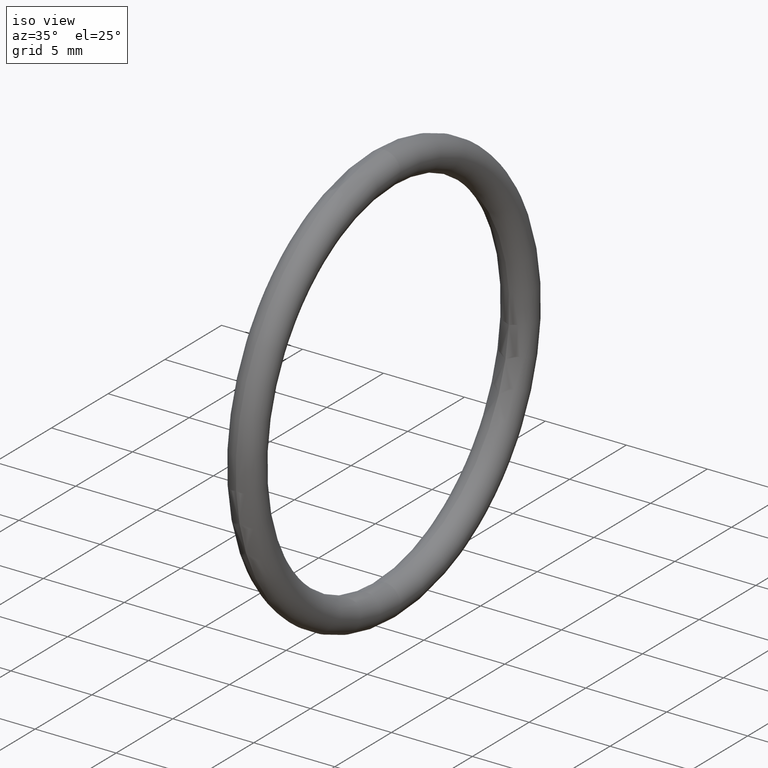
[diagram: clean part render]
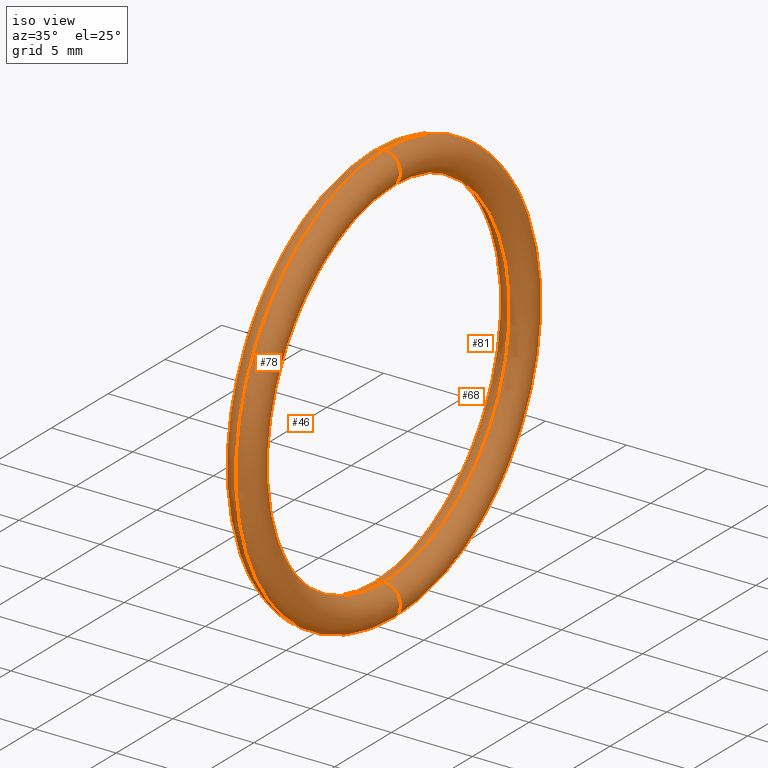
[diagram: same view with one multi-face feature highlighted, each face labeled with its STEP entity id]
A machine part, iso view. The highlighted faces form ONE feature: a constant-radius fillet chain: 4 tangent blend faces with common blend radius 1.016 mm. The faces share edges in the B-rep.
Their STEP definitions:
[1] entity #68 (Torus):
#1 = CIRCLE ( 'NONE', #9, 0.4350000000000000000 ) ;
#2 = CARTESIAN_POINT ( 'NONE',  ( 0.1000000000000000700, 0.0000000000000000000, 0.0000000000000000000 ) ) ;
#8 = CARTESIAN_POINT ( 'NONE',  ( 0.1000000000000000700, 0.0000000000000000000, 0.0000000000000000000 ) ) ;
#9 = AXIS2_PLACEMENT_3D ( 'NONE', #8, #15, #14 ) ;
#11 = TOROIDAL_SURFACE ( 'NONE', #40, 0.4749999999999999800, 0.04000000000000000100 ) ;
#12 = DIRECTION ( 'NONE',  ( 0.0000000000000000000, 0.0000000000000000000, 1.000000000000000000 ) ) ;
#13 = DIRECTION ( 'NONE',  ( -1.000000000000000000, 0.0000000000000000000, 0.0000000000000000000 ) ) ;
#14 = DIRECTION ( 'NONE',  ( 0.0000000000000000000, 0.0000000000000000000, 1.000000000000000000 ) ) ;
#15 = DIRECTION ( 'NONE',  ( -1.000000000000000000, 0.0000000000000000000, 0.0000000000000000000 ) ) ;
#29 = DIRECTION ( 'NONE',  ( -1.000000000000000000, 0.0000000000000000000, 0.0000000000000000000 ) ) ;
#40 = AXIS2_PLACEMENT_3D ( 'NONE', #2, #29, #41 ) ;
#41 = DIRECTION ( 'NONE',  ( 0.0000000000000000000, 0.0000000000000000000, 1.000000000000000000 ) ) ;
#42 = CARTESIAN_POINT ( 'NONE',  ( 0.1000000000000000700, 0.0000000000000000000, 0.0000000000000000000 ) ) ;
#43 = AXIS2_PLACEMENT_3D ( 'NONE', #42, #13, #12 ) ;
#44 = CIRCLE ( 'NONE', #43, 0.5150000000000000100 ) ;
#54 = CARTESIAN_POINT ( 'NONE',  ( 0.1000000000000000700, 5.817072295949927200E-017, -0.4749999999999999800 ) ) ;
#57 = EDGE_CURVE ( 'NONE', #58, #59, #112, .T. ) ;
#58 = VERTEX_POINT ( 'NONE', #108 ) ;
#59 = VERTEX_POINT ( 'NONE', #107 ) ;
#62 = VERTEX_POINT ( 'NONE', #101 ) ;
#63 = VERTEX_POINT ( 'NONE', #100 ) ;
#65 = EDGE_CURVE ( 'NONE', #62, #63, #99, .T. ) ;
#68 = ADVANCED_FACE ( 'NONE', ( #89 ), #11, .T. ) ;
#69 = EDGE_LOOP ( 'NONE', ( #70, #71, #73, #74 ) ) ;
#70 = ORIENTED_EDGE ( 'NONE', *, *, #65, .F. ) ;
#71 = ORIENTED_EDGE ( 'NONE', *, *, #72, .T. ) ;
#72 = EDGE_CURVE ( 'NONE', #62, #58, #44, .T. ) ;
#73 = ORIENTED_EDGE ( 'NONE', *, *, #57, .T. ) ;
#74 = ORIENTED_EDGE ( 'NONE', *, *, #75, .F. ) ;
#75 = EDGE_CURVE ( 'NONE', #63, #59, #1, .T. ) ;
#89 = FACE_OUTER_BOUND ( 'NONE', #69, .T. ) ;
#95 = DIRECTION ( 'NONE',  ( 0.0000000000000000000, 0.0000000000000000000, -1.000000000000000000 ) ) ;
#96 = DIRECTION ( 'NONE',  ( 0.0000000000000000000, -1.000000000000000000, 0.0000000000000000000 ) ) ;
#97 = CARTESIAN_POINT ( 'NONE',  ( 0.1000000000000000700, 0.0000000000000000000, 0.4749999999999999800 ) ) ;
#98 = AXIS2_PLACEMENT_3D ( 'NONE', #97, #96, #95 ) ;
#99 = CIRCLE ( 'NONE', #98, 0.03999999999999998000 ) ;
#100 = CARTESIAN_POINT ( 'NONE',  ( 0.1000000000000000700, 0.0000000000000000000, 0.4350000000000000000 ) ) ;
#101 = CARTESIAN_POINT ( 'NONE',  ( 0.1000000000000000700, 0.0000000000000000000, 0.5150000000000000100 ) ) ;
#107 = CARTESIAN_POINT ( 'NONE',  ( 0.1000000000000000700, 5.327213576290986400E-017, -0.4350000000000000000 ) ) ;
#108 = CARTESIAN_POINT ( 'NONE',  ( 0.1000000000000000700, 6.306931015608868600E-017, -0.5150000000000000100 ) ) ;
#109 = DIRECTION ( 'NONE',  ( 0.0000000000000000000, -1.224646799147353000E-016, 1.000000000000000000 ) ) ;
#110 = DIRECTION ( 'NONE',  ( 0.0000000000000000000, 1.000000000000000000, 1.224646799147353200E-016 ) ) ;
#111 = AXIS2_PLACEMENT_3D ( 'NONE', #54, #110, #109 ) ;
#112 = CIRCLE ( 'NONE', #111, 0.03999999999999998000 ) ;
[2] entity #81 (Torus):
#1 = CIRCLE ( 'NONE', #9, 0.4350000000000000000 ) ;
#3 = CARTESIAN_POINT ( 'NONE',  ( 0.1000000000000000700, 0.0000000000000000000, 0.0000000000000000000 ) ) ;
#4 = TOROIDAL_SURFACE ( 'NONE', #19, 0.4749999999999999800, 0.04000000000000000100 ) ;
#8 = CARTESIAN_POINT ( 'NONE',  ( 0.1000000000000000700, 0.0000000000000000000, 0.0000000000000000000 ) ) ;
#9 = AXIS2_PLACEMENT_3D ( 'NONE', #8, #15, #14 ) ;
#12 = DIRECTION ( 'NONE',  ( 0.0000000000000000000, 0.0000000000000000000, 1.000000000000000000 ) ) ;
#13 = DIRECTION ( 'NONE',  ( -1.000000000000000000, 0.0000000000000000000, 0.0000000000000000000 ) ) ;
#14 = DIRECTION ( 'NONE',  ( 0.0000000000000000000, 0.0000000000000000000, 1.000000000000000000 ) ) ;
#15 = DIRECTION ( 'NONE',  ( -1.000000000000000000, 0.0000000000000000000, 0.0000000000000000000 ) ) ;
#16 = CIRCLE ( 'NONE', #38, 0.03999999999999998000 ) ;
#17 = DIRECTION ( 'NONE',  ( 0.0000000000000000000, 0.0000000000000000000, 1.000000000000000000 ) ) ;
#18 = DIRECTION ( 'NONE',  ( -1.000000000000000000, 0.0000000000000000000, 0.0000000000000000000 ) ) ;
#19 = AXIS2_PLACEMENT_3D ( 'NONE', #3, #18, #17 ) ;
#21 = FACE_OUTER_BOUND ( 'NONE', #76, .T. ) ;
#31 = DIRECTION ( 'NONE',  ( 0.0000000000000000000, -1.224646799147353000E-016, 1.000000000000000000 ) ) ;
#32 = DIRECTION ( 'NONE',  ( 0.0000000000000000000, 1.000000000000000000, 1.224646799147353200E-016 ) ) ;
#33 = AXIS2_PLACEMENT_3D ( 'NONE', #39, #32, #31 ) ;
#34 = CIRCLE ( 'NONE', #33, 0.03999999999999998000 ) ;
#35 = DIRECTION ( 'NONE',  ( 0.0000000000000000000, 0.0000000000000000000, -1.000000000000000000 ) ) ;
#36 = DIRECTION ( 'NONE',  ( 0.0000000000000000000, -1.000000000000000000, 0.0000000000000000000 ) ) ;
#37 = CARTESIAN_POINT ( 'NONE',  ( 0.1000000000000000700, 0.0000000000000000000, 0.4749999999999999800 ) ) ;
#38 = AXIS2_PLACEMENT_3D ( 'NONE', #37, #36, #35 ) ;
#39 = CARTESIAN_POINT ( 'NONE',  ( 0.1000000000000000700, 5.817072295949927200E-017, -0.4749999999999999800 ) ) ;
#42 = CARTESIAN_POINT ( 'NONE',  ( 0.1000000000000000700, 0.0000000000000000000, 0.0000000000000000000 ) ) ;
#43 = AXIS2_PLACEMENT_3D ( 'NONE', #42, #13, #12 ) ;
#44 = CIRCLE ( 'NONE', #43, 0.5150000000000000100 ) ;
#58 = VERTEX_POINT ( 'NONE', #108 ) ;
#59 = VERTEX_POINT ( 'NONE', #107 ) ;
#62 = VERTEX_POINT ( 'NONE', #101 ) ;
#63 = VERTEX_POINT ( 'NONE', #100 ) ;
#72 = EDGE_CURVE ( 'NONE', #62, #58, #44, .T. ) ;
#75 = EDGE_CURVE ( 'NONE', #63, #59, #1, .T. ) ;
#76 = EDGE_LOOP ( 'NONE', ( #82, #83, #85, #86 ) ) ;
#81 = ADVANCED_FACE ( 'NONE', ( #21 ), #4, .T. ) ;
#82 = ORIENTED_EDGE ( 'NONE', *, *, #72, .F. ) ;
#83 = ORIENTED_EDGE ( 'NONE', *, *, #84, .F. ) ;
#84 = EDGE_CURVE ( 'NONE', #63, #62, #16, .T. ) ;
#85 = ORIENTED_EDGE ( 'NONE', *, *, #75, .T. ) ;
#86 = ORIENTED_EDGE ( 'NONE', *, *, #87, .T. ) ;
#87 = EDGE_CURVE ( 'NONE', #59, #58, #34, .T. ) ;
#100 = CARTESIAN_POINT ( 'NONE',  ( 0.1000000000000000700, 0.0000000000000000000, 0.4350000000000000000 ) ) ;
#101 = CARTESIAN_POINT ( 'NONE',  ( 0.1000000000000000700, 0.0000000000000000000, 0.5150000000000000100 ) ) ;
#107 = CARTESIAN_POINT ( 'NONE',  ( 0.1000000000000000700, 5.327213576290986400E-017, -0.4350000000000000000 ) ) ;
#108 = CARTESIAN_POINT ( 'NONE',  ( 0.1000000000000000700, 6.306931015608868600E-017, -0.5150000000000000100 ) ) ;
[3] entity #46 (Torus):
#16 = CIRCLE ( 'NONE', #38, 0.03999999999999998000 ) ;
#31 = DIRECTION ( 'NONE',  ( 0.0000000000000000000, -1.224646799147353000E-016, 1.000000000000000000 ) ) ;
#32 = DIRECTION ( 'NONE',  ( 0.0000000000000000000, 1.000000000000000000, 1.224646799147353200E-016 ) ) ;
#33 = AXIS2_PLACEMENT_3D ( 'NONE', #39, #32, #31 ) ;
#34 = CIRCLE ( 'NONE', #33, 0.03999999999999998000 ) ;
#35 = DIRECTION ( 'NONE',  ( 0.0000000000000000000, 0.0000000000000000000, -1.000000000000000000 ) ) ;
#36 = DIRECTION ( 'NONE',  ( 0.0000000000000000000, -1.000000000000000000, 0.0000000000000000000 ) ) ;
#37 = CARTESIAN_POINT ( 'NONE',  ( 0.1000000000000000700, 0.0000000000000000000, 0.4749999999999999800 ) ) ;
#38 = AXIS2_PLACEMENT_3D ( 'NONE', #37, #36, #35 ) ;
#39 = CARTESIAN_POINT ( 'NONE',  ( 0.1000000000000000700, 5.817072295949927200E-017, -0.4749999999999999800 ) ) ;
#45 = EDGE_LOOP ( 'NONE', ( #47, #48, #49, #50 ) ) ;
#46 = ADVANCED_FACE ( 'NONE', ( #56 ), #53, .T. ) ;
#47 = ORIENTED_EDGE ( 'NONE', *, *, #61, .F. ) ;
#48 = ORIENTED_EDGE ( 'NONE', *, *, #87, .F. ) ;
#49 = ORIENTED_EDGE ( 'NONE', *, *, #67, .T. ) ;
#50 = ORIENTED_EDGE ( 'NONE', *, *, #84, .T. ) ;
#53 = TOROIDAL_SURFACE ( 'NONE', #115, 0.4749999999999999800, 0.04000000000000000100 ) ;
#55 = CARTESIAN_POINT ( 'NONE',  ( 0.1000000000000000700, 0.0000000000000000000, 0.0000000000000000000 ) ) ;
#56 = FACE_OUTER_BOUND ( 'NONE', #45, .T. ) ;
#58 = VERTEX_POINT ( 'NONE', #108 ) ;
#59 = VERTEX_POINT ( 'NONE', #107 ) ;
#61 = EDGE_CURVE ( 'NONE', #58, #62, #106, .T. ) ;
#62 = VERTEX_POINT ( 'NONE', #101 ) ;
#63 = VERTEX_POINT ( 'NONE', #100 ) ;
#67 = EDGE_CURVE ( 'NONE', #59, #63, #94, .T. ) ;
#84 = EDGE_CURVE ( 'NONE', #63, #62, #16, .T. ) ;
#87 = EDGE_CURVE ( 'NONE', #59, #58, #34, .T. ) ;
#90 = DIRECTION ( 'NONE',  ( 0.0000000000000000000, 0.0000000000000000000, 1.000000000000000000 ) ) ;
#91 = DIRECTION ( 'NONE',  ( -1.000000000000000000, 0.0000000000000000000, 0.0000000000000000000 ) ) ;
#92 = CARTESIAN_POINT ( 'NONE',  ( 0.1000000000000000700, 0.0000000000000000000, 0.0000000000000000000 ) ) ;
#93 = AXIS2_PLACEMENT_3D ( 'NONE', #92, #91, #90 ) ;
#94 = CIRCLE ( 'NONE', #93, 0.4350000000000000000 ) ;
#100 = CARTESIAN_POINT ( 'NONE',  ( 0.1000000000000000700, 0.0000000000000000000, 0.4350000000000000000 ) ) ;
#101 = CARTESIAN_POINT ( 'NONE',  ( 0.1000000000000000700, 0.0000000000000000000, 0.5150000000000000100 ) ) ;
#102 = DIRECTION ( 'NONE',  ( 0.0000000000000000000, 0.0000000000000000000, 1.000000000000000000 ) ) ;
#103 = DIRECTION ( 'NONE',  ( -1.000000000000000000, 0.0000000000000000000, 0.0000000000000000000 ) ) ;
#104 = CARTESIAN_POINT ( 'NONE',  ( 0.1000000000000000700, 0.0000000000000000000, 0.0000000000000000000 ) ) ;
#105 = AXIS2_PLACEMENT_3D ( 'NONE', #104, #103, #102 ) ;
#106 = CIRCLE ( 'NONE', #105, 0.5150000000000000100 ) ;
#107 = CARTESIAN_POINT ( 'NONE',  ( 0.1000000000000000700, 5.327213576290986400E-017, -0.4350000000000000000 ) ) ;
#108 = CARTESIAN_POINT ( 'NONE',  ( 0.1000000000000000700, 6.306931015608868600E-017, -0.5150000000000000100 ) ) ;
#113 = DIRECTION ( 'NONE',  ( 0.0000000000000000000, 0.0000000000000000000, 1.000000000000000000 ) ) ;
#114 = DIRECTION ( 'NONE',  ( -1.000000000000000000, 0.0000000000000000000, 0.0000000000000000000 ) ) ;
#115 = AXIS2_PLACEMENT_3D ( 'NONE', #55, #114, #113 ) ;
[4] entity #78 (Torus):
#5 = DIRECTION ( 'NONE',  ( 0.0000000000000000000, 0.0000000000000000000, 1.000000000000000000 ) ) ;
#6 = DIRECTION ( 'NONE',  ( -1.000000000000000000, 0.0000000000000000000, 0.0000000000000000000 ) ) ;
#7 = CARTESIAN_POINT ( 'NONE',  ( 0.1000000000000000700, 0.0000000000000000000, 0.0000000000000000000 ) ) ;
#10 = FACE_OUTER_BOUND ( 'NONE', #79, .T. ) ;
#20 = TOROIDAL_SURFACE ( 'NONE', #22, 0.4749999999999999800, 0.04000000000000000100 ) ;
#22 = AXIS2_PLACEMENT_3D ( 'NONE', #7, #6, #5 ) ;
#54 = CARTESIAN_POINT ( 'NONE',  ( 0.1000000000000000700, 5.817072295949927200E-017, -0.4749999999999999800 ) ) ;
#57 = EDGE_CURVE ( 'NONE', #58, #59, #112, .T. ) ;
#58 = VERTEX_POINT ( 'NONE', #108 ) ;
#59 = VERTEX_POINT ( 'NONE', #107 ) ;
#60 = ORIENTED_EDGE ( 'NONE', *, *, #61, .T. ) ;
#61 = EDGE_CURVE ( 'NONE', #58, #62, #106, .T. ) ;
#62 = VERTEX_POINT ( 'NONE', #101 ) ;
#63 = VERTEX_POINT ( 'NONE', #100 ) ;
#64 = ORIENTED_EDGE ( 'NONE', *, *, #65, .T. ) ;
#65 = EDGE_CURVE ( 'NONE', #62, #63, #99, .T. ) ;
#66 = ORIENTED_EDGE ( 'NONE', *, *, #67, .F. ) ;
#67 = EDGE_CURVE ( 'NONE', #59, #63, #94, .T. ) ;
#78 = ADVANCED_FACE ( 'NONE', ( #10 ), #20, .T. ) ;
#79 = EDGE_LOOP ( 'NONE', ( #80, #60, #64, #66 ) ) ;
#80 = ORIENTED_EDGE ( 'NONE', *, *, #57, .F. ) ;
#90 = DIRECTION ( 'NONE',  ( 0.0000000000000000000, 0.0000000000000000000, 1.000000000000000000 ) ) ;
#91 = DIRECTION ( 'NONE',  ( -1.000000000000000000, 0.0000000000000000000, 0.0000000000000000000 ) ) ;
#92 = CARTESIAN_POINT ( 'NONE',  ( 0.1000000000000000700, 0.0000000000000000000, 0.0000000000000000000 ) ) ;
#93 = AXIS2_PLACEMENT_3D ( 'NONE', #92, #91, #90 ) ;
#94 = CIRCLE ( 'NONE', #93, 0.4350000000000000000 ) ;
#95 = DIRECTION ( 'NONE',  ( 0.0000000000000000000, 0.0000000000000000000, -1.000000000000000000 ) ) ;
#96 = DIRECTION ( 'NONE',  ( 0.0000000000000000000, -1.000000000000000000, 0.0000000000000000000 ) ) ;
#97 = CARTESIAN_POINT ( 'NONE',  ( 0.1000000000000000700, 0.0000000000000000000, 0.4749999999999999800 ) ) ;
#98 = AXIS2_PLACEMENT_3D ( 'NONE', #97, #96, #95 ) ;
#99 = CIRCLE ( 'NONE', #98, 0.03999999999999998000 ) ;
#100 = CARTESIAN_POINT ( 'NONE',  ( 0.1000000000000000700, 0.0000000000000000000, 0.4350000000000000000 ) ) ;
#101 = CARTESIAN_POINT ( 'NONE',  ( 0.1000000000000000700, 0.0000000000000000000, 0.5150000000000000100 ) ) ;
#102 = DIRECTION ( 'NONE',  ( 0.0000000000000000000, 0.0000000000000000000, 1.000000000000000000 ) ) ;
#103 = DIRECTION ( 'NONE',  ( -1.000000000000000000, 0.0000000000000000000, 0.0000000000000000000 ) ) ;
#104 = CARTESIAN_POINT ( 'NONE',  ( 0.1000000000000000700, 0.0000000000000000000, 0.0000000000000000000 ) ) ;
#105 = AXIS2_PLACEMENT_3D ( 'NONE', #104, #103, #102 ) ;
#106 = CIRCLE ( 'NONE', #105, 0.5150000000000000100 ) ;
#107 = CARTESIAN_POINT ( 'NONE',  ( 0.1000000000000000700, 5.327213576290986400E-017, -0.4350000000000000000 ) ) ;
#108 = CARTESIAN_POINT ( 'NONE',  ( 0.1000000000000000700, 6.306931015608868600E-017, -0.5150000000000000100 ) ) ;
#109 = DIRECTION ( 'NONE',  ( 0.0000000000000000000, -1.224646799147353000E-016, 1.000000000000000000 ) ) ;
#110 = DIRECTION ( 'NONE',  ( 0.0000000000000000000, 1.000000000000000000, 1.224646799147353200E-016 ) ) ;
#111 = AXIS2_PLACEMENT_3D ( 'NONE', #54, #110, #109 ) ;
#112 = CIRCLE ( 'NONE', #111, 0.03999999999999998000 ) ;